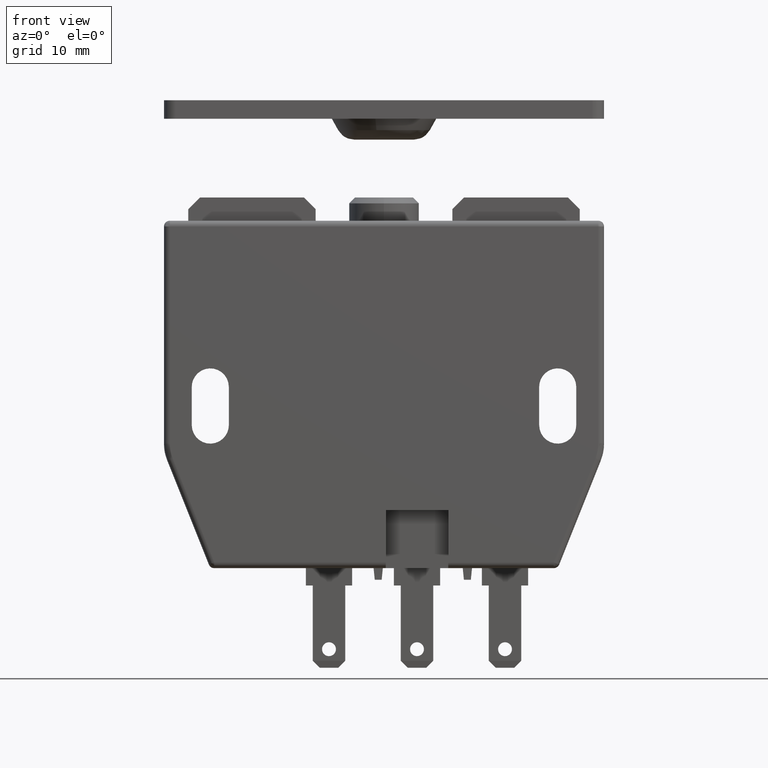
[diagram: clean part render]
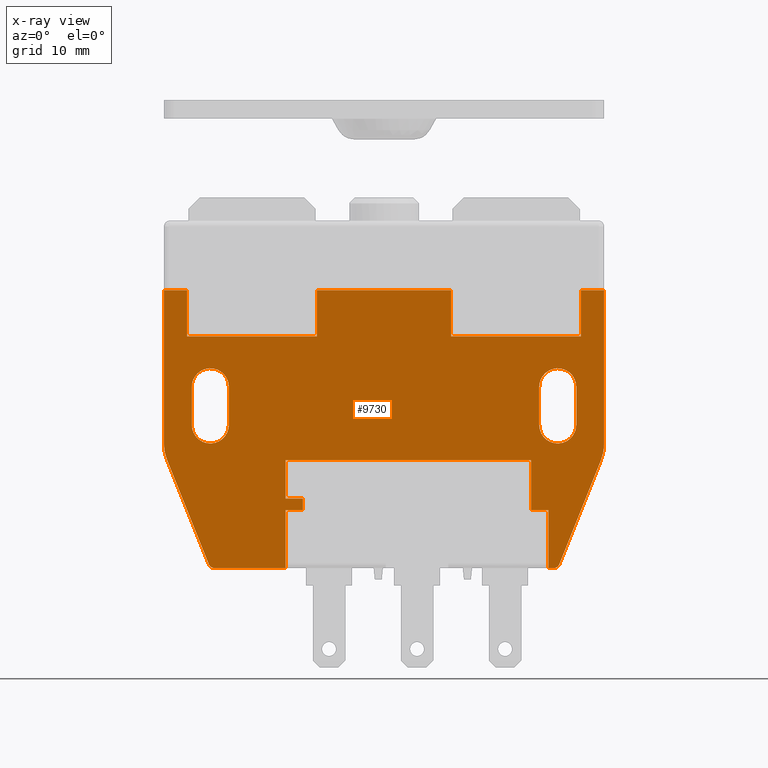
[diagram: x-ray — body ghosted, one internal face saturated and labeled with its STEP entity id]
A machine part, front view, then the same camera in x-ray: the body is ghosted and one INTERNAL B-rep face — a face not visible from any outside direction — is saturated and labeled: STEP entity #9730.
In plain terms, the highlighted face is a freeform B-spline surface patch.
Its self-contained STEP definition (entity closure, byte-faithful):
#8381=CARTESIAN_POINT('',(-8.500000000094412,-5.0,-26.000000000002800));
#8382=VERTEX_POINT('',#8381);
#8383=CARTESIAN_POINT('',(-8.500000000094412,-5.0,-22.700000000002799));
#8384=VERTEX_POINT('',#8383);
#8385=CARTESIAN_POINT('',(-8.500000000094412,-5.0,-26.000000000002800));
#8386=CARTESIAN_POINT('',(-8.500000000094412,-5.0,-22.700000000002799));
#8387=QUASI_UNIFORM_CURVE('',1,(#8385,#8386),.UNSPECIFIED.,.F.,.U.);
#8388=EDGE_CURVE('',#8382,#8384,#8387,.T.);
#8409=CARTESIAN_POINT('',(-7.000000000094410,-5.0,-26.000000000002800));
#8410=VERTEX_POINT('',#8409);
#8411=CARTESIAN_POINT('',(-7.000000000094410,-5.0,-26.000000000002800));
#8412=CARTESIAN_POINT('',(-8.500000000094412,-5.0,-26.000000000002800));
#8413=QUASI_UNIFORM_CURVE('',1,(#8411,#8412),.UNSPECIFIED.,.F.,.U.);
#8414=EDGE_CURVE('',#8410,#8382,#8413,.T.);
#8431=CARTESIAN_POINT('',(-7.000000000094410,-5.0,-27.000000000002800));
#8432=VERTEX_POINT('',#8431);
#8433=CARTESIAN_POINT('',(-7.000000000094410,-5.0,-27.000000000002800));
#8434=CARTESIAN_POINT('',(-7.000000000094410,-5.0,-26.000000000002800));
#8435=QUASI_UNIFORM_CURVE('',1,(#8433,#8434),.UNSPECIFIED.,.F.,.U.);
#8436=EDGE_CURVE('',#8432,#8410,#8435,.T.);
#8453=CARTESIAN_POINT('',(-8.500000000094412,-5.0,-27.000000000002800));
#8454=VERTEX_POINT('',#8453);
#8455=CARTESIAN_POINT('',(-8.500000000094412,-5.0,-27.000000000002800));
#8456=CARTESIAN_POINT('',(-7.000000000094410,-5.0,-27.000000000002800));
#8457=QUASI_UNIFORM_CURVE('',1,(#8455,#8456),.UNSPECIFIED.,.F.,.U.);
#8458=EDGE_CURVE('',#8454,#8432,#8457,.T.);
#8475=CARTESIAN_POINT('',(-8.500000000094412,-5.0,-32.000000000002807));
#8476=VERTEX_POINT('',#8475);
#8477=CARTESIAN_POINT('',(-8.500000000094412,-5.0,-32.000000000002807));
#8478=CARTESIAN_POINT('',(-8.500000000094412,-5.0,-27.000000000002800));
#8479=QUASI_UNIFORM_CURVE('',1,(#8477,#8478),.UNSPECIFIED.,.F.,.U.);
#8480=EDGE_CURVE('',#8476,#8454,#8479,.T.);
#8497=CARTESIAN_POINT('',(14.199999999883140,-5.0,-27.000000000002800));
#8498=VERTEX_POINT('',#8497);
#8499=CARTESIAN_POINT('',(14.199999999883140,-5.0,-32.000000000002807));
#8500=VERTEX_POINT('',#8499);
#8501=CARTESIAN_POINT('',(14.199999999883140,-5.0,-27.000000000002800));
#8502=CARTESIAN_POINT('',(14.199999999883140,-5.0,-32.000000000002807));
#8503=QUASI_UNIFORM_CURVE('',1,(#8501,#8502),.UNSPECIFIED.,.F.,.U.);
#8504=EDGE_CURVE('',#8498,#8500,#8503,.T.);
#8525=CARTESIAN_POINT('',(12.699999999883140,-5.0,-27.000000000002800));
#8526=VERTEX_POINT('',#8525);
#8527=CARTESIAN_POINT('',(12.699999999883140,-5.0,-27.000000000002800));
#8528=CARTESIAN_POINT('',(14.199999999883140,-5.0,-27.000000000002800));
#8529=QUASI_UNIFORM_CURVE('',1,(#8527,#8528),.UNSPECIFIED.,.F.,.U.);
#8530=EDGE_CURVE('',#8526,#8498,#8529,.T.);
#8547=CARTESIAN_POINT('',(12.699999999883140,-5.0,-22.700000000002799));
#8548=VERTEX_POINT('',#8547);
#8549=CARTESIAN_POINT('',(12.699999999883140,-5.0,-22.700000000002799));
#8550=CARTESIAN_POINT('',(12.699999999883140,-5.0,-27.000000000002800));
#8551=QUASI_UNIFORM_CURVE('',1,(#8549,#8550),.UNSPECIFIED.,.F.,.U.);
#8552=EDGE_CURVE('',#8548,#8526,#8551,.T.);
#8569=CARTESIAN_POINT('',(-8.500000000094412,-5.0,-22.700000000002799));
#8570=CARTESIAN_POINT('',(12.699999999883140,-5.0,-22.700000000002799));
#8571=QUASI_UNIFORM_CURVE('',1,(#8569,#8570),.UNSPECIFIED.,.F.,.U.);
#8572=EDGE_CURVE('',#8384,#8548,#8571,.T.);
#8594=CARTESIAN_POINT('',(-16.599999999999699,-5.0,-16.349999999975001));
#8595=VERTEX_POINT('',#8594);
#8601=CARTESIAN_POINT('',(-16.599999999999699,-5.0,-19.649999999975051));
#8602=VERTEX_POINT('',#8601);
#8603=CARTESIAN_POINT('',(-16.599999999999699,-5.0,-16.349999999975001));
#8604=CARTESIAN_POINT('',(-16.599999999999699,-5.0,-19.649999999975051));
#8605=QUASI_UNIFORM_CURVE('',1,(#8603,#8604),.UNSPECIFIED.,.F.,.U.);
#8606=EDGE_CURVE('',#8595,#8602,#8605,.T.);
#8635=CARTESIAN_POINT('',(-13.399999999999700,-5.0,-16.349999999975001));
#8636=VERTEX_POINT('',#8635);
#8642=CARTESIAN_POINT('',(-13.399999999999700,-5.0,-16.349999999975001));
#8643=CARTESIAN_POINT('',(-13.399985768077389,-5.0,-16.225652163635100));
#8644=CARTESIAN_POINT('',(-13.432928244918511,-5.000000000000002,-15.944214035360790));
#8645=CARTESIAN_POINT('',(-13.590127480897991,-5.000000000000005,-15.551039156167430));
#8646=CARTESIAN_POINT('',(-13.843962145394361,-4.999999999999961,-15.221725942029231));
#8647=CARTESIAN_POINT('',(-14.142155750997491,-5.000000000000052,-14.983068857376590));
#8648=CARTESIAN_POINT('',(-14.468835825182220,-4.999999999999978,-14.826106316563781));
#8649=CARTESIAN_POINT('',(-14.815780479709680,-4.999999999999984,-14.748205517534190));
#8650=CARTESIAN_POINT('',(-15.177706773883401,-5.000000000000013,-14.745974047734761));
#8651=CARTESIAN_POINT('',(-15.499404670033620,-4.999999999999998,-14.818218790364741));
#8652=CARTESIAN_POINT('',(-15.804706254309670,-4.999999999999958,-14.955802082235079));
#8653=CARTESIAN_POINT('',(-16.057749275060321,-5.000000000000030,-15.134013403202170));
#8654=CARTESIAN_POINT('',(-16.290511378551130,-4.999999999999883,-15.384569152920269));
#8655=CARTESIAN_POINT('',(-16.449615416087202,-5.000000000000175,-15.650039121431639));
#8656=CARTESIAN_POINT('',(-16.568859084945242,-4.999999999999473,-15.976965563865891));
#8657=CARTESIAN_POINT('',(-16.600043632156481,-5.000000000000622,-16.206007382818580));
#8658=CARTESIAN_POINT('',(-16.599999999999699,-5.0,-16.349999999975001));
#8659=B_SPLINE_CURVE_WITH_KNOTS('',3,(#8642,#8643,#8644,#8645,#8646,#8647,#8648,#8649,#8650,#8651,#8652,#8653,#8654,#8655,#8656,#8657,#8658),.UNSPECIFIED.,.F.,.U.,(4,1,1,1,1,1,1,1,1,1,1,1,1,1,4),(0.000000158235374,0.373049702743462,0.844303591335639,1.256646290271484,1.610087239632292,1.983153727181407,2.336582557163775,2.670355380955179,3.063053420516743,3.318326410996218,3.671757473016448,3.985927588361465,4.339356762916736,4.594616753730019,5.026579785247424),.UNSPECIFIED.);
#8660=EDGE_CURVE('',#8636,#8595,#8659,.T.);
#8672=CARTESIAN_POINT('',(-13.399999999999700,-5.0,-19.649999999975051));
#8673=VERTEX_POINT('',#8672);
#8679=CARTESIAN_POINT('',(-13.399999999999700,-5.0,-19.649999999975051));
#8680=CARTESIAN_POINT('',(-13.399999999999700,-5.0,-16.349999999975001));
#8681=QUASI_UNIFORM_CURVE('',1,(#8679,#8680),.UNSPECIFIED.,.F.,.U.);
#8682=EDGE_CURVE('',#8673,#8636,#8681,.T.);
#8708=CARTESIAN_POINT('',(-16.599999999999699,-5.0,-19.649999999975051));
#8709=CARTESIAN_POINT('',(-16.600054854646789,-4.999999999999997,-19.793996101370269));
#8710=CARTESIAN_POINT('',(-16.569742234344520,-5.000000000000005,-20.016492552410732));
#8711=CARTESIAN_POINT('',(-16.459191779530052,-4.999999999999996,-20.325448775289281));
#8712=CARTESIAN_POINT('',(-16.303622499862630,-5.000000000000037,-20.600133969114360));
#8713=CARTESIAN_POINT('',(-16.068903309922820,-4.999999999999917,-20.859101339711259));
#8714=CARTESIAN_POINT('',(-15.750091054632801,-5.000000000000133,-21.080721094911421));
#8715=CARTESIAN_POINT('',(-15.386537720076230,-4.999999999999893,-21.220987124031570));
#8716=CARTESIAN_POINT('',(-14.967068459500130,-5.000000000000088,-21.267479868776110));
#8717=CARTESIAN_POINT('',(-14.548932101903420,-4.999999999999860,-21.205499012466461));
#8718=CARTESIAN_POINT('',(-14.168522229022100,-5.000000000000244,-21.036850517127849));
#8719=CARTESIAN_POINT('',(-13.868674494301590,-4.999999999999861,-20.799838855255729));
#8720=CARTESIAN_POINT('',(-13.657360766140330,-5.000000000000133,-20.539093441235320));
#8721=CARTESIAN_POINT('',(-13.519545152797280,-4.999999999999850,-20.277382266343491));
#8722=CARTESIAN_POINT('',(-13.424547213068680,-5.000000000000282,-19.983773572232192));
#8723=CARTESIAN_POINT('',(-13.399970600623600,-4.999999999999613,-19.774351685015048));
#8724=CARTESIAN_POINT('',(-13.399999999999700,-5.0,-19.649999999975051));
#8725=B_SPLINE_CURVE_WITH_KNOTS('',3,(#8708,#8709,#8710,#8711,#8712,#8713,#8714,#8715,#8716,#8717,#8718,#8719,#8720,#8721,#8722,#8723,#8724),.UNSPECIFIED.,.F.,.U.,(4,1,1,1,1,1,1,1,1,1,1,1,1,1,4),(0.000000158242820,0.431969681199547,0.667589581807843,0.981750209043682,1.374459562974922,1.708265825335810,2.140241303457503,2.532899838481030,2.964875615305558,3.396860636089384,3.769935575270197,4.103733096618274,4.398267144504513,4.653530803345539,5.026579785247415),.UNSPECIFIED.);
#8726=EDGE_CURVE('',#8602,#8673,#8725,.T.);
#8738=CARTESIAN_POINT('',(16.599999999999451,-5.0,-19.649999999975051));
#8739=VERTEX_POINT('',#8738);
#8745=CARTESIAN_POINT('',(16.599999999999451,-5.0,-16.349999999975001));
#8746=VERTEX_POINT('',#8745);
#8747=CARTESIAN_POINT('',(16.599999999999451,-5.0,-19.649999999975051));
#8748=CARTESIAN_POINT('',(16.599999999999451,-5.0,-16.349999999975001));
#8749=QUASI_UNIFORM_CURVE('',1,(#8747,#8748),.UNSPECIFIED.,.F.,.U.);
#8750=EDGE_CURVE('',#8739,#8746,#8749,.T.);
#8779=CARTESIAN_POINT('',(13.399999999999640,-5.0,-19.649999999975051));
#8780=VERTEX_POINT('',#8779);
#8786=CARTESIAN_POINT('',(13.399999999999640,-5.0,-19.649999999975051));
#8787=CARTESIAN_POINT('',(13.399995746666541,-5.000000000000002,-19.741622072286692));
#8788=CARTESIAN_POINT('',(13.417463207734180,-4.999999999999999,-19.944513594636501));
#8789=CARTESIAN_POINT('',(13.498188550005860,-5.000000000000014,-20.229423491787038));
#8790=CARTESIAN_POINT('',(13.645867160875490,-4.999999999999981,-20.522825146484941));
#8791=CARTESIAN_POINT('',(13.850156195374630,-5.000000000000037,-20.781327340215999));
#8792=CARTESIAN_POINT('',(14.146683285399099,-4.999999999999987,-21.021665099678380));
#8793=CARTESIAN_POINT('',(14.492971103739951,-5.000000000000001,-21.185463794652279));
#8794=CARTESIAN_POINT('',(14.868287066615460,-5.000000000000004,-21.257696885416291));
#8795=CARTESIAN_POINT('',(15.190583184514610,-5.000000000000028,-21.247787719325220));
#8796=CARTESIAN_POINT('',(15.485669827790810,-4.999999999999923,-21.183422388135369));
#8797=CARTESIAN_POINT('',(15.746934893167341,-5.000000000000135,-21.075203682009349));
#8798=CARTESIAN_POINT('',(16.027794644894669,-4.999999999999880,-20.892525639846980));
#8799=CARTESIAN_POINT('',(16.255031995533301,-5.000000000000033,-20.662458311341972));
#8800=CARTESIAN_POINT('',(16.448344088372458,-5.000000000000029,-20.357193426682478));
#8801=CARTESIAN_POINT('',(16.570107516325720,-4.999999999999935,-20.029594437224819));
#8802=CARTESIAN_POINT('',(16.600020266786402,-5.000000000000098,-19.774349642305779));
#8803=CARTESIAN_POINT('',(16.599999999999451,-5.0,-19.649999999975051));
#8804=B_SPLINE_CURVE_WITH_KNOTS('',3,(#8786,#8787,#8788,#8789,#8790,#8791,#8792,#8793,#8794,#8795,#8796,#8797,#8798,#8799,#8800,#8801,#8802,#8803),.UNSPECIFIED.,.F.,.U.,(4,1,1,1,1,1,1,1,1,1,1,1,1,1,1,4),(0.000000158284174,0.274868778135235,0.608675809753764,0.883570915259769,1.256646290309792,1.590444284438562,2.022419953467151,2.395482831866051,2.729269379935650,2.984529950958717,3.298680234097017,3.573578893761416,3.985927588372335,4.260824134638444,4.653530803349551,5.026579785247186),.UNSPECIFIED.);
#8805=EDGE_CURVE('',#8780,#8739,#8804,.T.);
#8817=CARTESIAN_POINT('',(13.399999999999640,-5.0,-16.349999999975001));
#8818=VERTEX_POINT('',#8817);
#8824=CARTESIAN_POINT('',(13.399999999999640,-5.0,-16.349999999975001));
#8825=CARTESIAN_POINT('',(13.399999999999640,-5.0,-19.649999999975051));
#8826=QUASI_UNIFORM_CURVE('',1,(#8824,#8825),.UNSPECIFIED.,.F.,.U.);
#8827=EDGE_CURVE('',#8818,#8780,#8826,.T.);
#8853=CARTESIAN_POINT('',(16.599999999999451,-5.0,-16.349999999975001));
#8854=CARTESIAN_POINT('',(16.600152510196811,-5.000000000000011,-16.160172541144110));
#8855=CARTESIAN_POINT('',(16.544590493184270,-4.999999999999989,-15.852675656852650));
#8856=CARTESIAN_POINT('',(16.360988375371079,-5.000000000000013,-15.488006942632150));
#8857=CARTESIAN_POINT('',(16.173502363332201,-4.999999999999989,-15.250810048115950));
#8858=CARTESIAN_POINT('',(15.919150586143839,-5.000000000000004,-15.023017754989571));
#8859=CARTESIAN_POINT('',(15.588765925091399,-5.000000000000013,-14.841176524686720));
#8860=CARTESIAN_POINT('',(15.203797482317221,-4.999999999999981,-14.749812529060270));
#8861=CARTESIAN_POINT('',(14.855270331807660,-5.000000000000055,-14.745539829343590));
#8862=CARTESIAN_POINT('',(14.506319460469470,-4.999999999999971,-14.812700439318681));
#8863=CARTESIAN_POINT('',(14.157329736060349,-5.000000000000009,-14.969949089443020));
#8864=CARTESIAN_POINT('',(13.858719948803900,-5.000000000000001,-15.208962542428880));
#8865=CARTESIAN_POINT('',(13.662879563295210,-4.999999999999999,-15.456802471739911));
#8866=CARTESIAN_POINT('',(13.525256631631690,-4.999999999999967,-15.710525059365640));
#8867=CARTESIAN_POINT('',(13.426840224437070,-5.000000000000175,-15.996587643257620));
#8868=CARTESIAN_POINT('',(13.399972829642470,-4.999999999999699,-16.225648728745309));
#8869=CARTESIAN_POINT('',(13.399999999999640,-5.0,-16.349999999975001));
#8870=B_SPLINE_CURVE_WITH_KNOTS('',3,(#8853,#8854,#8855,#8856,#8857,#8858,#8859,#8860,#8861,#8862,#8863,#8864,#8865,#8866,#8867,#8868,#8869),.UNSPECIFIED.,.F.,.U.,(4,1,1,1,1,1,1,1,1,1,1,1,1,1,4),(0.000000158229184,0.569413940934457,0.922840236261127,1.217375669800973,1.472638262799391,1.943890815726308,2.336582557164490,2.650708819000585,2.984529950939439,3.396860636089329,3.789570788895088,4.123376627651287,4.339356762917040,4.653530803345605,5.026579785247300),.UNSPECIFIED.);
#8871=EDGE_CURVE('',#8746,#8818,#8870,.T.);
#9034=CARTESIAN_POINT('',(-17.000000000152198,-5.000000000013990,-12.000000000002821));
#9035=VERTEX_POINT('',#9034);
#9036=CARTESIAN_POINT('',(-5.800000000152339,-5.000000000013990,-12.000000000002821));
#9037=VERTEX_POINT('',#9036);
#9038=CARTESIAN_POINT('',(-17.000000000152198,-5.000000000013990,-12.000000000002821));
#9039=CARTESIAN_POINT('',(-5.800000000152339,-5.000000000013990,-12.000000000002821));
#9040=QUASI_UNIFORM_CURVE('',1,(#9038,#9039),.UNSPECIFIED.,.F.,.U.);
#9041=EDGE_CURVE('',#9035,#9037,#9040,.T.);
#9074=CARTESIAN_POINT('',(-5.800000000152339,-5.000000000014010,-8.000000000002810));
#9075=VERTEX_POINT('',#9074);
#9097=CARTESIAN_POINT('',(-5.800000000152339,-5.000000000013990,-12.000000000002821));
#9098=CARTESIAN_POINT('',(-5.800000000152339,-5.000000000014010,-8.000000000002810));
#9099=QUASI_UNIFORM_CURVE('',1,(#9097,#9098),.UNSPECIFIED.,.F.,.U.);
#9100=EDGE_CURVE('',#9037,#9075,#9099,.T.);
#9112=CARTESIAN_POINT('',(-17.000000000152198,-5.000000000014010,-8.000000000002810));
#9113=VERTEX_POINT('',#9112);
#9119=CARTESIAN_POINT('',(-17.000000000152198,-5.000000000014010,-8.000000000002810));
#9120=CARTESIAN_POINT('',(-17.000000000152198,-5.000000000013990,-12.000000000002821));
#9121=QUASI_UNIFORM_CURVE('',1,(#9119,#9120),.UNSPECIFIED.,.F.,.U.);
#9122=EDGE_CURVE('',#9113,#9035,#9121,.T.);
#9146=CARTESIAN_POINT('',(17.000000000152198,-5.000000000013990,-12.000000000002821));
#9147=VERTEX_POINT('',#9146);
#9148=CARTESIAN_POINT('',(5.800000000152339,-5.000000000013990,-12.000000000002821));
#9149=VERTEX_POINT('',#9148);
#9150=CARTESIAN_POINT('',(17.000000000152198,-5.000000000013990,-12.000000000002821));
#9151=CARTESIAN_POINT('',(5.800000000152339,-5.000000000013990,-12.000000000002821));
#9152=QUASI_UNIFORM_CURVE('',1,(#9150,#9151),.UNSPECIFIED.,.F.,.U.);
#9153=EDGE_CURVE('',#9147,#9149,#9152,.T.);
#9188=CARTESIAN_POINT('',(17.000000000152198,-5.000000000013990,-8.000000000002810));
#9189=VERTEX_POINT('',#9188);
#9209=CARTESIAN_POINT('',(17.000000000152198,-5.000000000013990,-8.000000000002810));
#9210=CARTESIAN_POINT('',(17.000000000152198,-5.000000000013990,-12.000000000002821));
#9211=QUASI_UNIFORM_CURVE('',1,(#9209,#9210),.UNSPECIFIED.,.F.,.U.);
#9212=EDGE_CURVE('',#9189,#9147,#9211,.T.);
#9222=CARTESIAN_POINT('',(5.800000000152339,-5.000000000013990,-8.000000000002810));
#9223=VERTEX_POINT('',#9222);
#9224=CARTESIAN_POINT('',(5.800000000152339,-5.000000000013990,-12.000000000002821));
#9225=CARTESIAN_POINT('',(5.800000000152339,-5.000000000013990,-8.000000000002810));
#9226=QUASI_UNIFORM_CURVE('',1,(#9224,#9225),.UNSPECIFIED.,.F.,.U.);
#9227=EDGE_CURVE('',#9149,#9223,#9226,.T.);
#9314=CARTESIAN_POINT('',(-18.999999999999648,-5.0,-21.229670385733950));
#9315=VERTEX_POINT('',#9314);
#9322=CARTESIAN_POINT('',(-18.713906763540749,-5.0,-22.715233091150200));
#9323=VERTEX_POINT('',#9322);
#9329=CARTESIAN_POINT('',(-18.999999999999659,-5.0,-21.229670385733950));
#9330=CARTESIAN_POINT('',(-18.999999999999662,-5.0,-22.000000000002871));
#9331=CARTESIAN_POINT('',(-18.713906763540759,-5.0,-22.715233091150200));
#9339=(BOUNDED_CURVE()B_SPLINE_CURVE(2,(#9329,#9330,#9331),.UNSPECIFIED.,.F.,.U.)CURVE()GEOMETRIC_REPRESENTATION_ITEM()QUASI_UNIFORM_CURVE()RATIONAL_B_SPLINE_CURVE((1.0,0.981956386731426,1.0))REPRESENTATION_ITEM(''));
#9340=EDGE_CURVE('',#9315,#9323,#9339,.T.);
#9352=CARTESIAN_POINT('',(-15.125721864729250,-5.0,-31.685695338179841));
#9353=VERTEX_POINT('',#9352);
#9359=CARTESIAN_POINT('',(-15.125721864729250,-5.0,-31.685695338179841));
#9360=CARTESIAN_POINT('',(-18.713906763540749,-5.0,-22.715233091150200));
#9361=QUASI_UNIFORM_CURVE('',1,(#9359,#9360),.UNSPECIFIED.,.F.,.U.);
#9362=EDGE_CURVE('',#9353,#9323,#9361,.T.);
#9383=CARTESIAN_POINT('',(-14.661483519286600,-5.0,-32.000000000002807));
#9384=VERTEX_POINT('',#9383);
#9390=CARTESIAN_POINT('',(-15.125721864729240,-5.0,-31.685695338179841));
#9391=CARTESIAN_POINT('',(-15.000000000000064,-5.0,-32.000000000002800));
#9392=CARTESIAN_POINT('',(-14.661483519286600,-5.0,-32.000000000002807));
#9400=(BOUNDED_CURVE()B_SPLINE_CURVE(2,(#9390,#9391,#9392),.UNSPECIFIED.,.F.,.U.)CURVE()GEOMETRIC_REPRESENTATION_ITEM()QUASI_UNIFORM_CURVE()RATIONAL_B_SPLINE_CURVE((1.0,0.828067230469263,1.0))REPRESENTATION_ITEM(''));
#9401=EDGE_CURVE('',#9353,#9384,#9400,.T.);
#9420=CARTESIAN_POINT('',(14.661483519286540,-5.0,-32.000000000002807));
#9421=VERTEX_POINT('',#9420);
#9428=CARTESIAN_POINT('',(15.125721864729149,-5.0,-31.685695338179801));
#9429=VERTEX_POINT('',#9428);
#9435=CARTESIAN_POINT('',(14.661483519286540,-5.0,-32.000000000002807));
#9436=CARTESIAN_POINT('',(15.000000000000027,-4.999999999999999,-32.000000000002800));
#9437=CARTESIAN_POINT('',(15.125721864729190,-5.0,-31.685695338179809));
#9445=(BOUNDED_CURVE()B_SPLINE_CURVE(2,(#9435,#9436,#9437),.UNSPECIFIED.,.F.,.U.)CURVE()GEOMETRIC_REPRESENTATION_ITEM()QUASI_UNIFORM_CURVE()RATIONAL_B_SPLINE_CURVE((1.0,0.828067230469247,1.0))REPRESENTATION_ITEM(''));
#9446=EDGE_CURVE('',#9421,#9429,#9445,.T.);
#9458=CARTESIAN_POINT('',(18.713906763540749,-5.0,-22.715233091150001));
#9459=VERTEX_POINT('',#9458);
#9465=CARTESIAN_POINT('',(18.713906763540749,-5.0,-22.715233091150001));
#9466=CARTESIAN_POINT('',(15.125721864729149,-5.0,-31.685695338179801));
#9467=QUASI_UNIFORM_CURVE('',1,(#9465,#9466),.UNSPECIFIED.,.F.,.U.);
#9468=EDGE_CURVE('',#9459,#9429,#9467,.T.);
#9489=CARTESIAN_POINT('',(18.999999999999648,-5.0,-21.229670385733751));
#9490=VERTEX_POINT('',#9489);
#9496=CARTESIAN_POINT('',(18.713906763540759,-5.0,-22.715233091150001));
#9497=CARTESIAN_POINT('',(18.999999999999666,-5.0,-22.000000000002672));
#9498=CARTESIAN_POINT('',(18.999999999999659,-5.0,-21.229670385733751));
#9506=(BOUNDED_CURVE()B_SPLINE_CURVE(2,(#9496,#9497,#9498),.UNSPECIFIED.,.F.,.U.)CURVE()GEOMETRIC_REPRESENTATION_ITEM()QUASI_UNIFORM_CURVE()RATIONAL_B_SPLINE_CURVE((1.0,0.981956386731426,1.0))REPRESENTATION_ITEM(''));
#9507=EDGE_CURVE('',#9459,#9490,#9506,.T.);
#9545=CARTESIAN_POINT('',(-18.999999999999702,-5.0,-8.000000000002810));
#9546=VERTEX_POINT('',#9545);
#9547=CARTESIAN_POINT('',(-18.999999999999648,-5.0,-21.229670385733950));
#9548=CARTESIAN_POINT('',(-18.999999999999702,-5.0,-8.000000000002810));
#9549=QUASI_UNIFORM_CURVE('',1,(#9547,#9548),.UNSPECIFIED.,.F.,.U.);
#9550=EDGE_CURVE('',#9315,#9546,#9549,.T.);
#9580=CARTESIAN_POINT('',(18.999999999999702,-5.0,-8.000000000002810));
#9581=VERTEX_POINT('',#9580);
#9587=CARTESIAN_POINT('',(18.999999999999702,-5.0,-8.000000000002810));
#9588=CARTESIAN_POINT('',(18.999999999999648,-5.0,-21.229670385733751));
#9589=QUASI_UNIFORM_CURVE('',1,(#9587,#9588),.UNSPECIFIED.,.F.,.U.);
#9590=EDGE_CURVE('',#9581,#9490,#9589,.T.);
#9603=CARTESIAN_POINT('',(-17.000000000152198,-5.000000000014010,-8.000000000002810));
#9604=CARTESIAN_POINT('',(-18.999999999999702,-5.0,-8.000000000002810));
#9605=QUASI_UNIFORM_CURVE('',1,(#9603,#9604),.UNSPECIFIED.,.F.,.U.);
#9606=EDGE_CURVE('',#9113,#9546,#9605,.T.);
#9634=CARTESIAN_POINT('',(18.999999999999702,-5.0,-8.000000000002810));
#9635=CARTESIAN_POINT('',(17.000000000152198,-5.000000000013990,-8.000000000002810));
#9636=QUASI_UNIFORM_CURVE('',1,(#9634,#9635),.UNSPECIFIED.,.F.,.U.);
#9637=EDGE_CURVE('',#9581,#9189,#9636,.T.);
#9666=CARTESIAN_POINT('',(5.800000000152339,-5.000000000013990,-8.000000000002810));
#9667=CARTESIAN_POINT('',(-5.800000000152339,-5.000000000014010,-8.000000000002810));
#9668=QUASI_UNIFORM_CURVE('',1,(#9666,#9667),.UNSPECIFIED.,.F.,.U.);
#9669=EDGE_CURVE('',#9223,#9075,#9668,.T.);
#9675=CARTESIAN_POINT('',(-20.898099926348301,-5.0,-6.801200046519469));
#9676=CARTESIAN_POINT('',(20.898100945587721,-5.0,-6.801200046519469));
#9677=CARTESIAN_POINT('',(-20.898099926348301,-5.0,-33.198800597216319));
#9678=CARTESIAN_POINT('',(20.898100945587721,-5.0,-33.198800597216319));
#9679=B_SPLINE_SURFACE_WITH_KNOTS('',1,1,((#9675,#9677),(#9676,#9678)),.UNSPECIFIED.,.F.,.F.,.U.,(2,2),(2,2),(0.0,41.796200871936023),(0.0,26.397600550696851),.UNSPECIFIED.);
#9680=ORIENTED_EDGE('',*,*,#8530,.T.);
#9681=ORIENTED_EDGE('',*,*,#8504,.T.);
#9682=CARTESIAN_POINT('',(14.661483519286540,-5.0,-32.000000000002807));
#9683=CARTESIAN_POINT('',(14.199999999883140,-5.0,-32.000000000002807));
#9684=QUASI_UNIFORM_CURVE('',1,(#9682,#9683),.UNSPECIFIED.,.F.,.U.);
#9685=EDGE_CURVE('',#9421,#8500,#9684,.T.);
#9686=ORIENTED_EDGE('',*,*,#9685,.F.);
#9687=ORIENTED_EDGE('',*,*,#9446,.T.);
#9688=ORIENTED_EDGE('',*,*,#9468,.F.);
#9689=ORIENTED_EDGE('',*,*,#9507,.T.);
#9690=ORIENTED_EDGE('',*,*,#9590,.F.);
#9691=ORIENTED_EDGE('',*,*,#9637,.T.);
#9692=ORIENTED_EDGE('',*,*,#9212,.T.);
#9693=ORIENTED_EDGE('',*,*,#9153,.T.);
#9694=ORIENTED_EDGE('',*,*,#9227,.T.);
#9695=ORIENTED_EDGE('',*,*,#9669,.T.);
#9696=ORIENTED_EDGE('',*,*,#9100,.F.);
#9697=ORIENTED_EDGE('',*,*,#9041,.F.);
#9698=ORIENTED_EDGE('',*,*,#9122,.F.);
#9699=ORIENTED_EDGE('',*,*,#9606,.T.);
#9700=ORIENTED_EDGE('',*,*,#9550,.F.);
#9701=ORIENTED_EDGE('',*,*,#9340,.T.);
#9702=ORIENTED_EDGE('',*,*,#9362,.F.);
#9703=ORIENTED_EDGE('',*,*,#9401,.T.);
#9704=CARTESIAN_POINT('',(-8.500000000094412,-5.0,-32.000000000002807));
#9705=CARTESIAN_POINT('',(-14.661483519286600,-5.0,-32.000000000002807));
#9706=QUASI_UNIFORM_CURVE('',1,(#9704,#9705),.UNSPECIFIED.,.F.,.U.);
#9707=EDGE_CURVE('',#8476,#9384,#9706,.T.);
#9708=ORIENTED_EDGE('',*,*,#9707,.F.);
#9709=ORIENTED_EDGE('',*,*,#8480,.T.);
#9710=ORIENTED_EDGE('',*,*,#8458,.T.);
#9711=ORIENTED_EDGE('',*,*,#8436,.T.);
#9712=ORIENTED_EDGE('',*,*,#8414,.T.);
#9713=ORIENTED_EDGE('',*,*,#8388,.T.);
#9714=ORIENTED_EDGE('',*,*,#8572,.T.);
#9715=ORIENTED_EDGE('',*,*,#8552,.T.);
#9716=EDGE_LOOP('',(#9680,#9681,#9686,#9687,#9688,#9689,#9690,#9691,#9692,#9693,#9694,#9695,#9696,#9697,#9698,#9699,#9700,#9701,#9702,#9703,#9708,#9709,#9710,#9711,#9712,#9713,#9714,#9715));
#9717=FACE_OUTER_BOUND('',#9716,.T.);
#9718=ORIENTED_EDGE('',*,*,#8827,.F.);
#9719=ORIENTED_EDGE('',*,*,#8871,.F.);
#9720=ORIENTED_EDGE('',*,*,#8750,.F.);
#9721=ORIENTED_EDGE('',*,*,#8805,.F.);
#9722=EDGE_LOOP('',(#9718,#9719,#9720,#9721));
#9723=FACE_BOUND('',#9722,.T.);
#9724=ORIENTED_EDGE('',*,*,#8682,.F.);
#9725=ORIENTED_EDGE('',*,*,#8726,.F.);
#9726=ORIENTED_EDGE('',*,*,#8606,.F.);
#9727=ORIENTED_EDGE('',*,*,#8660,.F.);
#9728=EDGE_LOOP('',(#9724,#9725,#9726,#9727));
#9729=FACE_BOUND('',#9728,.T.);
#9730=ADVANCED_FACE('',(#9717,#9723,#9729),#9679,.F.);